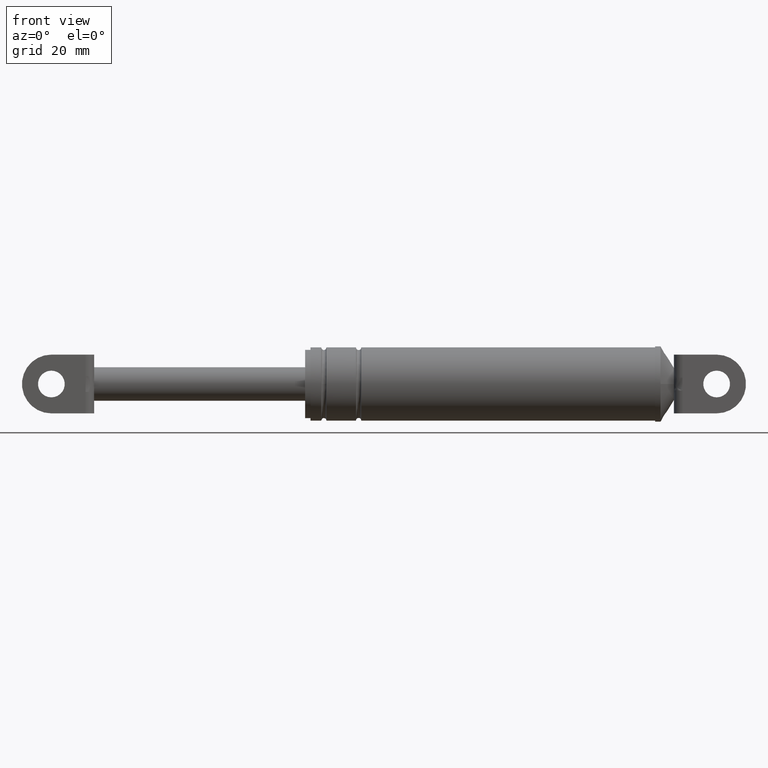
[diagram: clean part render]
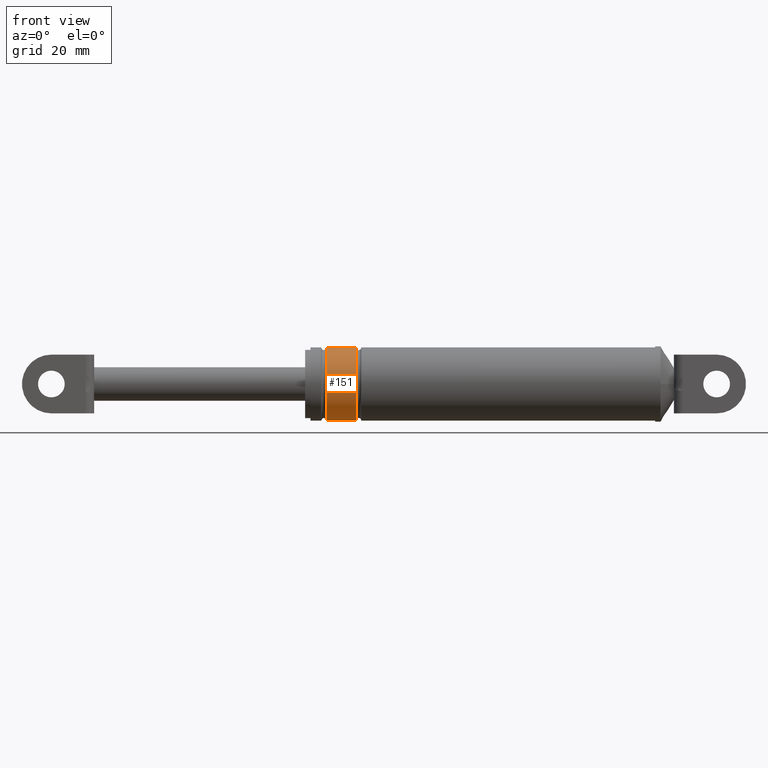
[diagram: same view with one face highlighted and labeled with its STEP entity id]
A machine part, front view. The second image highlights one B-rep face of the part: STEP entity #151.
In plain terms, the highlighted cylindrical surface (partial cylindrical patch) has radius 13.7 mm, axis along (1, 0, 0).
Its self-contained STEP definition (entity closure, byte-faithful):
#151=ADVANCED_FACE('',(#573),#572,.T.);
#572=CYLINDRICAL_SURFACE('',#1198,1.37000000000E+001);
#573=FACE_OUTER_BOUND('',#1199,.T.);
#1195=CARTESIAN_POINT('',(0.00000000000E+000,0.00000000000E+000,1.70729320502E+002));
#1196=DIRECTION('',(1.00000000000E+000,-0.00000000000E+000,-0.00000000000E+000));
#1197=DIRECTION('',(0.00000000000E+000,0.00000000000E+000,-1.00000000000E+000));
#1198=AXIS2_PLACEMENT_3D('',#1195,#1196,#1197);
#1199=EDGE_LOOP('',(#1571,#1572,#1573,#1574,#1575));
#1571=ORIENTED_EDGE('',*,*,#1776,.F.);
#1572=ORIENTED_EDGE('',*,*,#1781,.F.);
#1573=ORIENTED_EDGE('',*,*,#1798,.T.);
#1574=ORIENTED_EDGE('',*,*,#1786,.T.);
#1575=ORIENTED_EDGE('',*,*,#1799,.F.);
#1776=EDGE_CURVE('',#2370,#2371,#2372,.T.);
#1781=EDGE_CURVE('',#2397,#2370,#2404,.T.);
#1786=EDGE_CURVE('',#2418,#2425,#2438,.T.);
#1798=EDGE_CURVE('',#2397,#2418,#2514,.T.);
#1799=EDGE_CURVE('',#2371,#2425,#2520,.T.);
#2370=VERTEX_POINT('',#3264);
#2371=VERTEX_POINT('',#3265);
#2372=CIRCLE('',#3269,1.37000000000E+001);
#2397=VERTEX_POINT('',#3285);
#2404=CIRCLE('',#3293,1.37000000000E+001);
#2418=VERTEX_POINT('',#3300);
#2425=VERTEX_POINT('',#3306);
#2438=CIRCLE('',#3321,1.37000000000E+001);
#2514=(BOUNDED_CURVE() B_SPLINE_CURVE(1,(#3358,#3359),.UNSPECIFIED.,.F.,.F.) B_SPLINE_CURVE_WITH_KNOTS((2,2),(8.33333343261E-002,9.16666667006E-001),.UNSPECIFIED.) CURVE() GEOMETRIC_REPRESENTATION_ITEM() RATIONAL_B_SPLINE_CURVE((1.00000000000E+000,1.00000000000E+000)) REPRESENTATION_ITEM('') );
#2520=(BOUNDED_CURVE() B_SPLINE_CURVE(1,(#3360,#3361),.UNSPECIFIED.,.F.,.F.) B_SPLINE_CURVE_WITH_KNOTS((2,2),(8.33333333333E-002,9.16666666667E-001),.UNSPECIFIED.) CURVE() GEOMETRIC_REPRESENTATION_ITEM() RATIONAL_B_SPLINE_CURVE((7.50000000000E-001,7.50000000000E-001)) REPRESENTATION_ITEM('') );
#3264=CARTESIAN_POINT('',(1.91446942787E+002,-1.37000000000E+001,1.70729320507E+002));
#3265=CARTESIAN_POINT('',(1.91446942787E+002,0.00000000000E+000,1.84429320502E+002));
#3266=CARTESIAN_POINT('',(1.91446942787E+002,0.00000000000E+000,1.70729320502E+002));
#3267=DIRECTION('',(-1.00000000000E+000,0.00000000000E+000,0.00000000000E+000));
#3268=DIRECTION('',(0.00000000000E+000,-1.22460635382E-016,1.00000000000E+000));
#3269=AXIS2_PLACEMENT_3D('',#3266,#3267,#3268);
#3285=CARTESIAN_POINT('',(1.91446942787E+002,0.00000000000E+000,1.57029320502E+002));
#3290=CARTESIAN_POINT('',(1.91446942787E+002,0.00000000000E+000,1.70729320502E+002));
#3291=DIRECTION('',(-1.00000000000E+000,0.00000000000E+000,0.00000000000E+000));
#3292=DIRECTION('',(0.00000000000E+000,-1.22460635382E-016,1.00000000000E+000));
#3293=AXIS2_PLACEMENT_3D('',#3290,#3291,#3292);
#3300=CARTESIAN_POINT('',(2.02446942787E+002,0.00000000000E+000,1.57029320502E+002));
#3306=CARTESIAN_POINT('',(2.02446942787E+002,0.00000000000E+000,1.84429320502E+002));
#3318=CARTESIAN_POINT('',(2.02446942787E+002,0.00000000000E+000,1.70729320502E+002));
#3319=DIRECTION('',(-1.00000000000E+000,0.00000000000E+000,0.00000000000E+000));
#3320=DIRECTION('',(0.00000000000E+000,-1.22460635382E-016,1.00000000000E+000));
#3321=AXIS2_PLACEMENT_3D('',#3318,#3319,#3320);
#3358=CARTESIAN_POINT('',(1.91446942800E+002,0.00000000000E+000,1.57029320502E+002));
#3359=CARTESIAN_POINT('',(2.02446942791E+002,0.00000000000E+000,1.57029320502E+002));
#3360=CARTESIAN_POINT('',(1.91446942787E+002,-5.92118946467E-016,1.84429320502E+002));
#3361=CARTESIAN_POINT('',(2.02446942787E+002,-5.92118946467E-016,1.84429320502E+002));